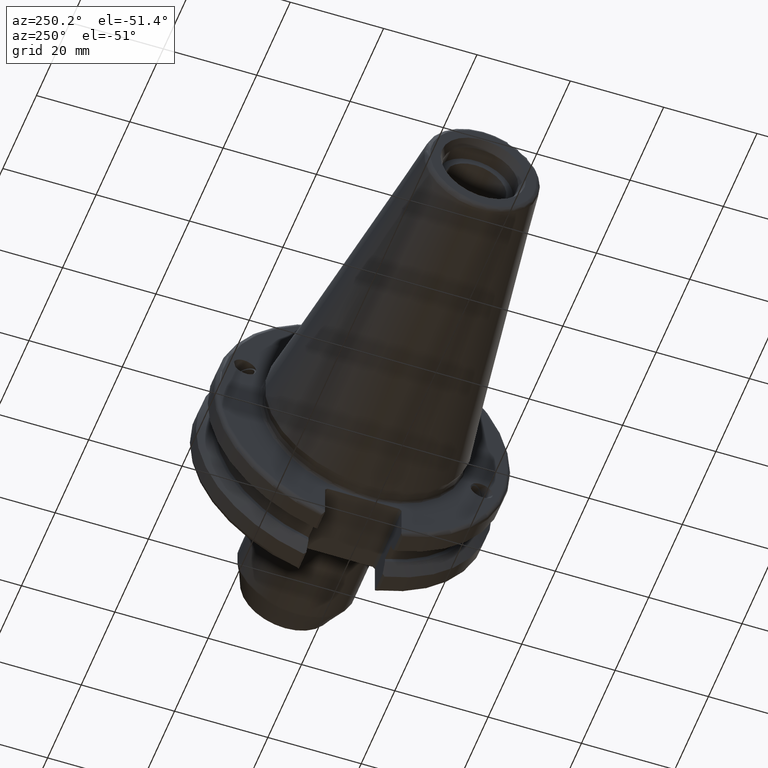
[diagram: clean part render]
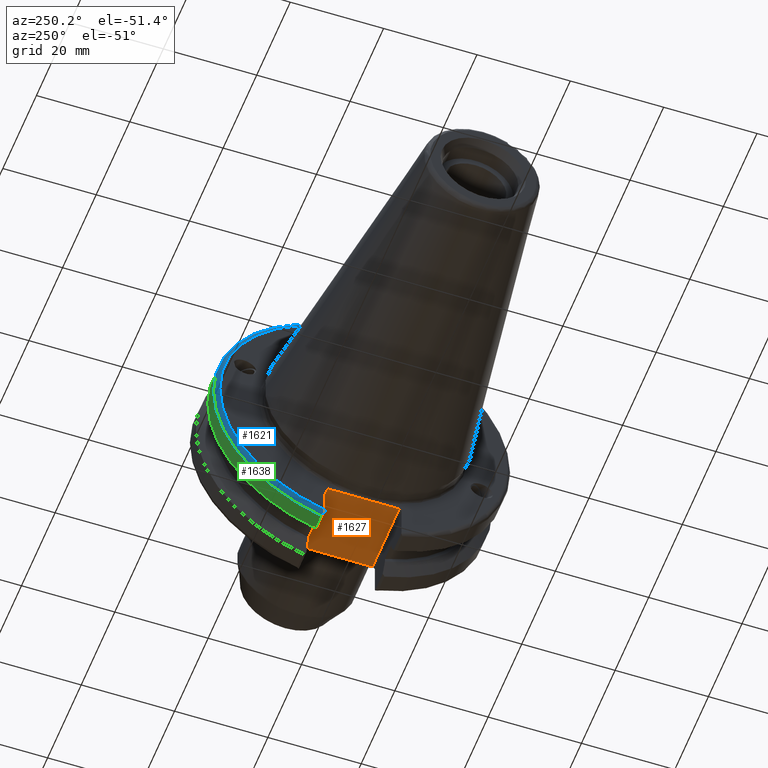
[diagram: same view with three faces highlighted in distinct colors, each labeled with its STEP entity id]
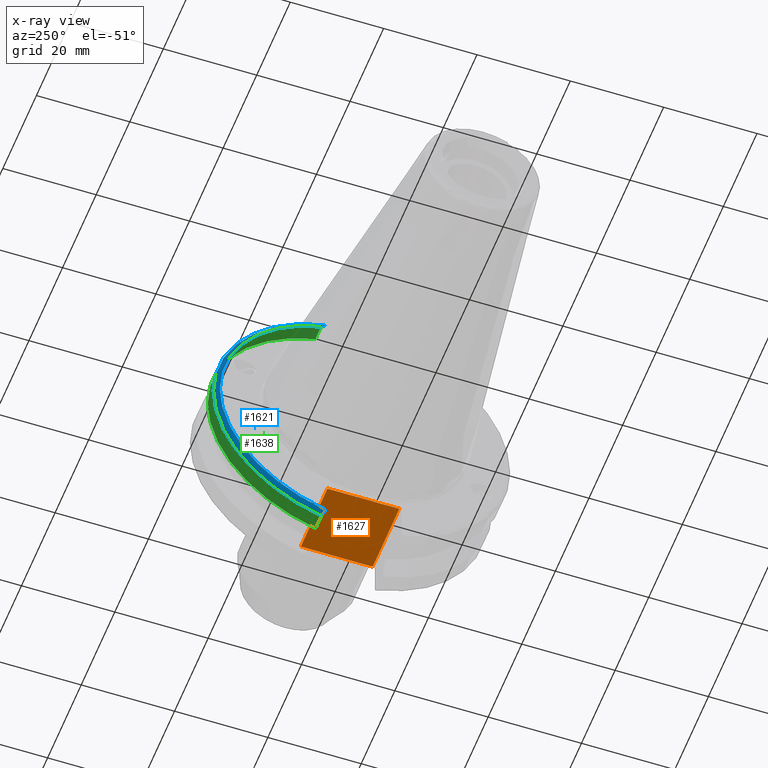
[diagram: x-ray of the same camera — body ghosted, the three highlighted faces saturated]
A machine part, auxiliary view with three faces highlighted in distinct colors.
The next image is the same camera in x-ray (body ghosted, the three faces saturated) — at least one of them is partly hidden behind the body in this view.
Their STEP definitions:

[orange] entity #1627 — the highlighted planar face has unit normal (0, 0, 1).
#93=PLANE('',#1821);
#243=FACE_OUTER_BOUND('',#348,.T.);
#348=EDGE_LOOP('',(#1412,#1413,#1414,#1415));
#435=LINE('',#2686,#532);
#475=LINE('',#3025,#572);
#496=LINE('',#3237,#593);
#497=LINE('',#3239,#594);
#532=VECTOR('',#1952,10.);
#572=VECTOR('',#2148,10.);
#593=VECTOR('',#2227,10.);
#594=VECTOR('',#2230,10.);
#671=VERTEX_POINT('',#2683);
#672=VERTEX_POINT('',#2685);
#750=VERTEX_POINT('',#3022);
#751=VERTEX_POINT('',#3024);
#848=EDGE_CURVE('',#671,#672,#435,.T.);
#954=EDGE_CURVE('',#750,#751,#475,.T.);
#1009=EDGE_CURVE('',#672,#750,#496,.T.);
#1010=EDGE_CURVE('',#751,#671,#497,.T.);
#1412=ORIENTED_EDGE('',*,*,#1009,.F.);
#1413=ORIENTED_EDGE('',*,*,#848,.F.);
#1414=ORIENTED_EDGE('',*,*,#1010,.F.);
#1415=ORIENTED_EDGE('',*,*,#954,.F.);
#1627=ADVANCED_FACE('',(#243),#93,.F.);
#1821=AXIS2_PLACEMENT_3D('',#3238,#2228,#2229);
#1952=DIRECTION('',(0.,1.,0.));
#2148=DIRECTION('',(0.,-1.,0.));
#2227=DIRECTION('',(-1.,-1.31581988103722E-16,0.));
#2228=DIRECTION('center_axis',(0.,0.,1.));
#2229=DIRECTION('ref_axis',(1.,0.,0.));
#2230=DIRECTION('',(1.,0.,0.));
#2683=CARTESIAN_POINT('',(19.05,-7.69,-22.6));
#2685=CARTESIAN_POINT('',(19.05,7.69,-22.6));
#2686=CARTESIAN_POINT('',(19.05,-2.77555756156289E-16,-22.6));
#3022=CARTESIAN_POINT('',(3.175,7.69,-22.6));
#3024=CARTESIAN_POINT('',(3.175,-7.69,-22.6));
#3025=CARTESIAN_POINT('',(3.175,15.875,-22.6));
#3237=CARTESIAN_POINT('',(9.44125,7.69,-22.6));
#3238=CARTESIAN_POINT('Origin',(15.7075,-5.55111512312578E-16,-22.6));
#3239=CARTESIAN_POINT('',(17.87875,-7.69,-22.6));

[blue] entity #1621 — the highlighted toroidal blend (fillet) surface has major radius 30.75 mm and minor (blend) radius 1 mm.
#38=TOROIDAL_SURFACE('',#1808,30.75,1.);
#157=CIRCLE('',#1791,30.75);
#163=CIRCLE('',#1809,31.75);
#237=FACE_OUTER_BOUND('',#341,.T.);
#341=EDGE_LOOP('',(#1386,#1387,#1388,#1389,#1390,#1391));
#406=B_SPLINE_CURVE_WITH_KNOTS('',3,(#3078,#3079,#3080,#3081,#3082,#3083),
 .UNSPECIFIED.,.F.,.F.,(4,2,4),(0.0977210450333169,0.111963554372601,0.150804064902975),
 .UNSPECIFIED.);
#415=B_SPLINE_CURVE_WITH_KNOTS('',3,(#3195,#3196,#3197,#3198,#3199,#3200,
#3201,#3202),.UNSPECIFIED.,.F.,.F.,(4,2,2,4),(-0.104180282751876,-0.072978474246144,
-0.0343524753874979,0.),.UNSPECIFIED.);
#416=B_SPLINE_CURVE_WITH_KNOTS('',3,(#3205,#3206,#3207,#3208,#3209,#3210,
#3211,#3212),.UNSPECIFIED.,.F.,.F.,(4,2,2,4),(0.,0.0343524753874975,0.0729784742461445,
0.104180282751877),.UNSPECIFIED.);
#417=B_SPLINE_CURVE_WITH_KNOTS('',3,(#3213,#3214,#3215,#3216,#3217,#3218),
 .UNSPECIFIED.,.F.,.F.,(4,2,4),(0.452741154494498,0.491581665024872,0.505824174364157),
 .UNSPECIFIED.);
#747=VERTEX_POINT('',#3016);
#748=VERTEX_POINT('',#3018);
#760=VERTEX_POINT('',#3077);
#776=VERTEX_POINT('',#3193);
#777=VERTEX_POINT('',#3194);
#778=VERTEX_POINT('',#3203);
#951=EDGE_CURVE('',#748,#747,#157,.T.);
#968=EDGE_CURVE('',#760,#748,#406,.T.);
#997=EDGE_CURVE('',#776,#777,#415,.T.);
#998=EDGE_CURVE('',#777,#778,#163,.T.);
#999=EDGE_CURVE('',#778,#760,#416,.T.);
#1000=EDGE_CURVE('',#747,#776,#417,.T.);
#1386=ORIENTED_EDGE('',*,*,#997,.T.);
#1387=ORIENTED_EDGE('',*,*,#998,.T.);
#1388=ORIENTED_EDGE('',*,*,#999,.T.);
#1389=ORIENTED_EDGE('',*,*,#968,.T.);
#1390=ORIENTED_EDGE('',*,*,#951,.T.);
#1391=ORIENTED_EDGE('',*,*,#1000,.T.);
#1621=ADVANCED_FACE('',(#237),#38,.T.);
#1791=AXIS2_PLACEMENT_3D('',#3019,#2144,#2145);
#1808=AXIS2_PLACEMENT_3D('',#3192,#2199,#2200);
#1809=AXIS2_PLACEMENT_3D('',#3204,#2201,#2202);
#2144=DIRECTION('center_axis',(1.,0.,0.));
#2145=DIRECTION('ref_axis',(0.,1.,1.60812264967664E-16));
#2199=DIRECTION('center_axis',(1.,0.,0.));
#2200=DIRECTION('ref_axis',(0.,0.,-1.));
#2201=DIRECTION('center_axis',(-1.,0.,0.));
#2202=DIRECTION('ref_axis',(0.,1.,1.60812264967664E-16));
#3016=CARTESIAN_POINT('',(3.175,8.19,29.6392712461019));
#3018=CARTESIAN_POINT('',(3.175,8.18999999999999,-29.6392712461019));
#3019=CARTESIAN_POINT('Origin',(3.175,0.,0.));
#3077=CARTESIAN_POINT('',(3.31912772509028,8.19,-30.1755016258903));
#3078=CARTESIAN_POINT('Ctrl Pts',(3.31912772509028,8.19,-30.1755016258903));
#3079=CARTESIAN_POINT('Ctrl Pts',(3.29318362718666,8.19,-30.131014531546));
#3080=CARTESIAN_POINT('Ctrl Pts',(3.27103565282437,8.19,-30.0852355256475));
#3081=CARTESIAN_POINT('Ctrl Pts',(3.20451443291695,8.19,-29.9212724384851));
#3082=CARTESIAN_POINT('Ctrl Pts',(3.175,8.19,-29.7687396145364));
#3083=CARTESIAN_POINT('Ctrl Pts',(3.175,8.19,-29.6392712461019));
#3192=CARTESIAN_POINT('Origin',(4.175,0.,0.));
#3193=CARTESIAN_POINT('',(3.31912772509028,8.19,30.1755016258903));
#3194=CARTESIAN_POINT('',(4.175,8.67204822802685,30.5427254764662));
#3195=CARTESIAN_POINT('Ctrl Pts',(3.31912772509028,8.19,30.1755016258903));
#3196=CARTESIAN_POINT('Ctrl Pts',(3.36755369570114,8.2703682833078,30.2367261024977));
#3197=CARTESIAN_POINT('Ctrl Pts',(3.43232973376814,8.34909446036477,30.2966996242308));
#3198=CARTESIAN_POINT('Ctrl Pts',(3.58532758094931,8.48862804755884,30.4029961692546));
#3199=CARTESIAN_POINT('Ctrl Pts',(3.70655857052286,8.56482138642532,30.4610401774263));
#3200=CARTESIAN_POINT('Ctrl Pts',(3.92668295662254,8.6471881193939,30.5237870709558));
#3201=CARTESIAN_POINT('Ctrl Pts',(4.06049174870834,8.67204822802686,30.5427254764662));
#3202=CARTESIAN_POINT('Ctrl Pts',(4.175,8.67204822802686,30.5427254764662));
#3203=CARTESIAN_POINT('',(4.175,8.67204822802685,-30.5427254764662));
#3204=CARTESIAN_POINT('Origin',(4.175,0.,0.));
#3205=CARTESIAN_POINT('Ctrl Pts',(4.175,8.67204822802685,-30.5427254764662));
#3206=CARTESIAN_POINT('Ctrl Pts',(4.06049174870834,8.67204822802685,-30.5427254764662));
#3207=CARTESIAN_POINT('Ctrl Pts',(3.92668295662254,8.6471881193939,-30.5237870709558));
#3208=CARTESIAN_POINT('Ctrl Pts',(3.70655857052286,8.56482138642533,-30.4610401774263));
#3209=CARTESIAN_POINT('Ctrl Pts',(3.58532758094931,8.48862804755884,-30.4029961692546));
#3210=CARTESIAN_POINT('Ctrl Pts',(3.43232973376814,8.34909446036477,-30.2966996242308));
#3211=CARTESIAN_POINT('Ctrl Pts',(3.36755369570113,8.2703682833078,-30.2367261024977));
#3212=CARTESIAN_POINT('Ctrl Pts',(3.31912772509028,8.18999999999999,-30.1755016258903));
#3213=CARTESIAN_POINT('Ctrl Pts',(3.175,8.19,29.6392712461018));
#3214=CARTESIAN_POINT('Ctrl Pts',(3.175,8.19,29.7687396145364));
#3215=CARTESIAN_POINT('Ctrl Pts',(3.20451443291695,8.19,29.9212724384851));
#3216=CARTESIAN_POINT('Ctrl Pts',(3.27103565282437,8.19,30.0852355256475));
#3217=CARTESIAN_POINT('Ctrl Pts',(3.29318362718666,8.19,30.131014531546));
#3218=CARTESIAN_POINT('Ctrl Pts',(3.31912772509028,8.19,30.1755016258903));

[green] entity #1638 — the highlighted cylindrical surface (partial cylindrical patch) has radius 31.75 mm, axis along (1, 0, 0).
#143=CIRCLE('',#1765,31.75);
#163=CIRCLE('',#1809,31.75);
#254=FACE_OUTER_BOUND('',#359,.T.);
#359=EDGE_LOOP('',(#1464,#1465,#1466,#1467));
#494=LINE('',#3220,#591);
#509=LINE('',#3273,#606);
#591=VECTOR('',#2205,10.);
#606=VECTOR('',#2264,10.);
#725=VERTEX_POINT('',#2947);
#726=VERTEX_POINT('',#2951);
#777=VERTEX_POINT('',#3194);
#778=VERTEX_POINT('',#3203);
#921=EDGE_CURVE('',#725,#726,#143,.T.);
#998=EDGE_CURVE('',#777,#778,#163,.T.);
#1001=EDGE_CURVE('',#778,#725,#494,.T.);
#1025=EDGE_CURVE('',#726,#777,#509,.T.);
#1464=ORIENTED_EDGE('',*,*,#998,.F.);
#1465=ORIENTED_EDGE('',*,*,#1025,.F.);
#1466=ORIENTED_EDGE('',*,*,#921,.F.);
#1467=ORIENTED_EDGE('',*,*,#1001,.F.);
#1560=CYLINDRICAL_SURFACE('',#1833,31.75);
#1638=ADVANCED_FACE('',(#254),#1560,.T.);
#1765=AXIS2_PLACEMENT_3D('',#2952,#2079,#2080);
#1809=AXIS2_PLACEMENT_3D('',#3204,#2201,#2202);
#1833=AXIS2_PLACEMENT_3D('',#3274,#2265,#2266);
#2079=DIRECTION('center_axis',(1.,0.,0.));
#2080=DIRECTION('ref_axis',(0.,0.,-1.));
#2201=DIRECTION('center_axis',(-1.,0.,0.));
#2202=DIRECTION('ref_axis',(0.,1.,1.60812264967664E-16));
#2205=DIRECTION('',(1.,0.,0.));
#2264=DIRECTION('',(-1.,0.,0.));
#2265=DIRECTION('center_axis',(1.,0.,0.));
#2266=DIRECTION('ref_axis',(0.,1.,0.));
#2947=CARTESIAN_POINT('',(7.60793323092436,8.67204822802685,-30.5427254764662));
#2951=CARTESIAN_POINT('',(7.60793323092436,8.67204822802685,30.5427254764662));
#2952=CARTESIAN_POINT('Origin',(7.60793323092436,0.,0.));
#3194=CARTESIAN_POINT('',(4.175,8.67204822802685,30.5427254764662));
#3203=CARTESIAN_POINT('',(4.175,8.67204822802685,-30.5427254764662));
#3204=CARTESIAN_POINT('Origin',(4.175,0.,0.));
#3220=CARTESIAN_POINT('',(5.39146661546218,8.67204822802685,-30.5427254764662));
#3273=CARTESIAN_POINT('',(5.39146661546218,8.67204822802685,30.5427254764662));
#3274=CARTESIAN_POINT('Origin',(5.39146661546218,0.,0.));